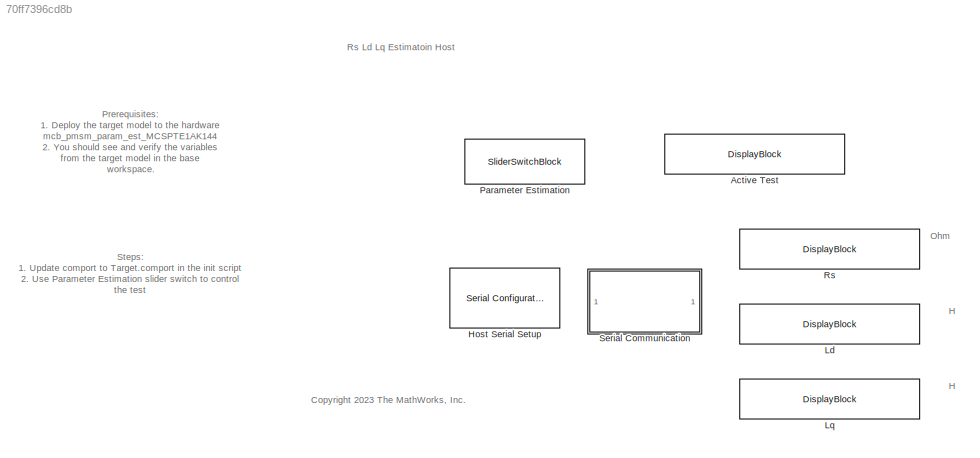
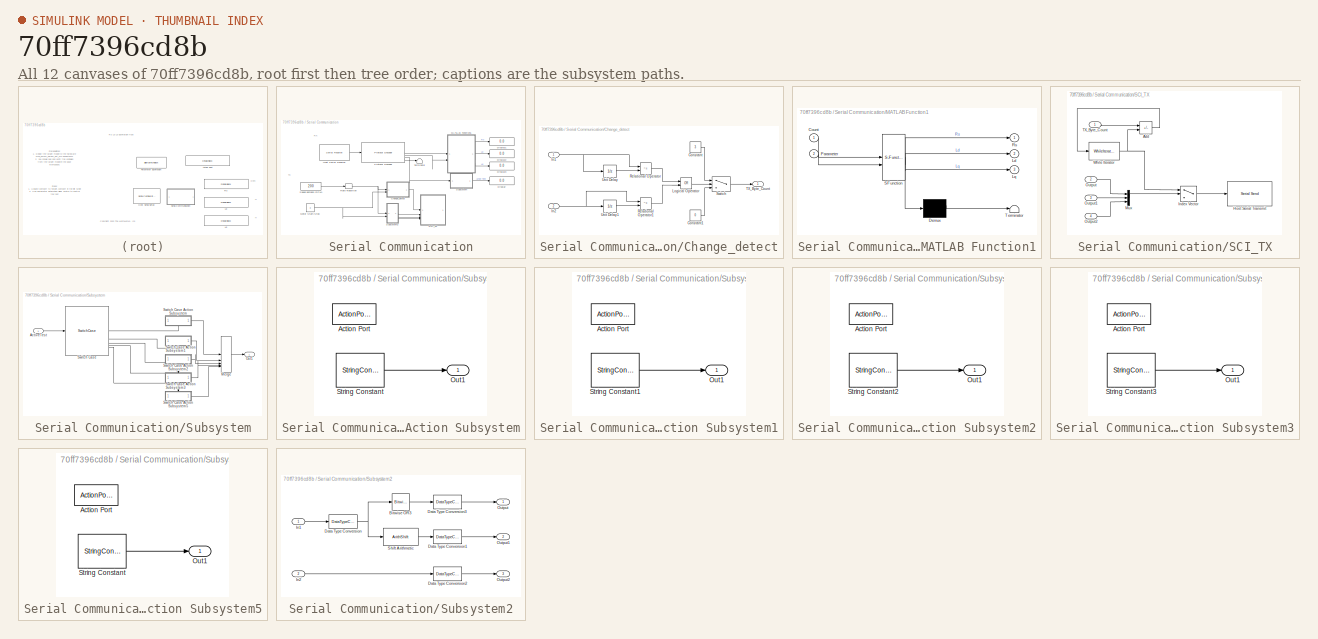
[diagram: thumbnail index - all 12 canvases of the model, root first then tree order]
MODEL slx_70ff7396cd8b
KIND model
CONFIG AbsTol = auto
CONFIG EnableMultiTasking = on
CONFIG FixedStep = auto
CONFIG MaxStep = auto
CONFIG MinStep = auto
CONFIG RelTol = 1e-3
CONFIG SampleTimeConstraint = Unconstrained
CONFIG SolverName = FixedStepDiscrete
CONFIG StartTime = 0.0
CONFIG StopTime = inf
BLOCK [DisplayBlock] Active Test
  LabelPosition = Hide
  Transparency = 1
BLOCK [Reference] Host Serial Setup  REF=instrumentseriallib/Serial Configuration
  LibrarySourceBlock = mcbhostblockslib/Host Serial Setup
  Priority = -99
  SourceBlock = instrumentseriallib/Serial Configuration
  SourceType = system.SerialConfiguration
BLOCK [DisplayBlock] Ld
  LabelPosition = Hide
  Transparency = 1
BLOCK [DisplayBlock] Lq
  LabelPosition = Hide
  Transparency = 1
BLOCK [SliderSwitchBlock] Parameter Estimation
  LabelPosition = Hide
BLOCK [DisplayBlock] Rs
  LabelPosition = Hide
  Transparency = 1
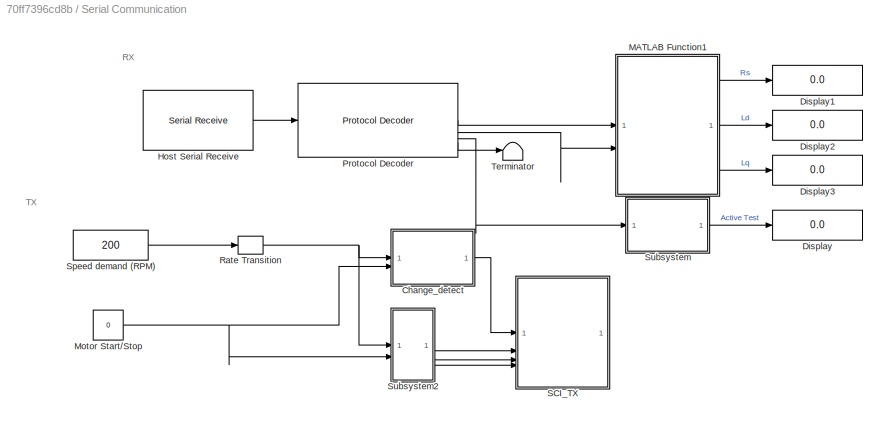
BLOCK [SubSystem] Serial Communication
BLOCK [SubSystem] Serial Communication/Change_detect
BLOCK [Constant] Serial Communication/Change_detect/Constant
  OutDataTypeStr = uint8
  Value = 3
BLOCK [Constant] Serial Communication/Change_detect/Constant1
  OutDataTypeStr = uint8
  Value = 0
BLOCK [Inport] Serial Communication/Change_detect/In1
BLOCK [Inport] Serial Communication/Change_detect/In2
  Port = 2
BLOCK [Logic] Serial Communication/Change_detect/Logical Operator
  AllPortsSameDT = off
  Operator = OR
  OutDataTypeStr = boolean
BLOCK [RelationalOperator] Serial Communication/Change_detect/Relational Operator
  InputSameDT = off
  Operator = ~=
  OutDataTypeStr = boolean
BLOCK [RelationalOperator] Serial Communication/Change_detect/Relational Operator1
  InputSameDT = off
  Operator = ~=
  OutDataTypeStr = boolean
BLOCK [Switch] Serial Communication/Change_detect/Switch
  Criteria = u2 > Threshold
  InputSameDT = off
  SaturateOnIntegerOverflow = off
BLOCK [Outport] Serial Communication/Change_detect/TX_Byte_Count
  VectorParamsAs1DForOutWhenUnconnected = off
BLOCK [UnitDelay] Serial Communication/Change_detect/Unit Delay
  HasFrameUpgradeWarning = on
  InitialCondition = 0.5
  SampleTime = -1
BLOCK [UnitDelay] Serial Communication/Change_detect/Unit Delay1
  HasFrameUpgradeWarning = on
  SampleTime = -1
BLOCK [Display] Serial Communication/Display
  Decimation = 1
BLOCK [Display] Serial Communication/Display1
  Decimation = 1
BLOCK [Display] Serial Communication/Display2
  Decimation = 1
BLOCK [Display] Serial Communication/Display3
  Decimation = 1
BLOCK [Reference] Serial Communication/Host Serial Receive  REF=instrumentseriallib/Serial Receive
  LibrarySourceBlock = mcbhostblockslib/Host Serial Receive
  SourceBlock = instrumentseriallib/Serial Receive
  SourceType = system.SerialReceive
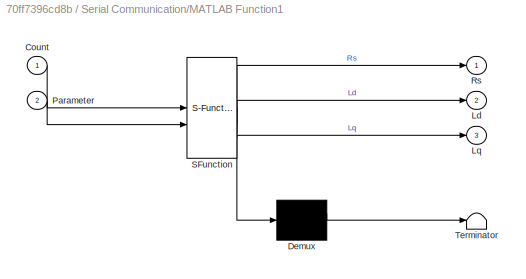
BLOCK [SubSystem] Serial Communication/MATLAB Function1
  ErrorFcn = Stateflow.Translate.translate
  PermitHierarchicalResolution = ExplicitOnly
  SFBlockType = MATLAB Function
  TreatAsAtomicUnit = on
BLOCK [Demux] Serial Communication/MATLAB Function1/ Demux 
  Outputs = 1
BLOCK [S-Function] Serial Communication/MATLAB Function1/ SFunction 
  EnableBusSupport = on
  FunctionName = sf_sfun
  PortCounts = [2 4]
  SFcnIsStateOwnerBlock = off
  SFunctionDeploymentMode = off
  Tag = Stateflow S-Function 2
BLOCK [Terminator] Serial Communication/MATLAB Function1/ Terminator 
BLOCK [Inport] Serial Communication/MATLAB Function1/Count
BLOCK [Outport] Serial Communication/MATLAB Function1/Ld
  Port = 2
BLOCK [Outport] Serial Communication/MATLAB Function1/Lq
  Port = 3
BLOCK [Inport] Serial Communication/MATLAB Function1/Parameter
  Port = 2
BLOCK [Outport] Serial Communication/MATLAB Function1/Rs
BLOCK [Constant] Serial Communication/Motor Start//Stop
  OutDataTypeStr = Inherit: Inherit via back propagation
  Value = 0
BLOCK [Reference] Serial Communication/Protocol Decoder  REF=embeddedblockslib/Protocol Decoder
  LibrarySourceBlock = c2000lib/Target Communication/Protocol Decoder
  SourceBlock = embeddedblockslib/Protocol Decoder
  SourceType = matlabshared.embedded_utilities.blocks.ProtocolDecoderBlock
BLOCK [RateTransition] Serial Communication/Rate Transition
  OutPortSampleTime = Ts_uart
BLOCK [SubSystem] Serial Communication/SCI_TX
  TreatAsAtomicUnit = on
BLOCK [Sum] Serial Communication/SCI_TX/Add
  IconShape = rectangular
  Inputs = +-
  OutDataTypeStr = Inherit: Same as first input
BLOCK [Reference] Serial Communication/SCI_TX/Host Serial Transmit  REF=instrumentseriallib/Serial Send
  LibrarySourceBlock = mcbhostblockslib/Host Serial Transmit
  SourceBlock = instrumentseriallib/Serial Send
  SourceType = system.SerialSend
BLOCK [MultiPortSwitch] Serial Communication/SCI_TX/Index Vector
  InputSameDT = off
  Inputs = 1
  SaturateOnIntegerOverflow = off
BLOCK [Mux] Serial Communication/SCI_TX/Mux
  DisplayOption = bar
  Inputs = 3
BLOCK [Inport] Serial Communication/SCI_TX/Output
  Port = 2
BLOCK [Inport] Serial Communication/SCI_TX/Output1
  Port = 3
BLOCK [Inport] Serial Communication/SCI_TX/Output2
  Port = 4
BLOCK [Inport] Serial Communication/SCI_TX/TX_Byte_Count
BLOCK [WhileIterator] Serial Communication/SCI_TX/While Iterator
  MaxIters = 3
  OutputDataType = int16
  ShowIterationPort = on
  WhileBlockType = do-while
BLOCK [Constant] Serial Communication/Speed demand (RPM)
  OutDataTypeStr = int16
  SampleTime = 0.03
  Value = 200
  VectorParams1D = off
BLOCK [SubSystem] Serial Communication/Subsystem
BLOCK [Inport] Serial Communication/Subsystem/ActiveTest
BLOCK [Merge] Serial Communication/Subsystem/Merge
  Inputs = 5
BLOCK [Outport] Serial Communication/Subsystem/Out1
BLOCK [SwitchCase] Serial Communication/Subsystem/Switch Case
  CaseConditions = {0,1,2,3}
BLOCK [SubSystem] Serial Communication/Subsystem/Switch Case Action Subsystem
  TreatAsAtomicUnit = on
BLOCK [ActionPort] Serial Communication/Subsystem/Switch Case Action Subsystem/Action Port
BLOCK [Outport] Serial Communication/Subsystem/Switch Case Action Subsystem/Out1
BLOCK [StringConstant] Serial Communication/Subsystem/Switch Case Action Subsystem/String Constant
  String = "Inactive"
BLOCK [SubSystem] Serial Communication/Subsystem/Switch Case Action Subsystem1
  TreatAsAtomicUnit = on
BLOCK [ActionPort] Serial Communication/Subsystem/Switch Case Action Subsystem1/Action Port
BLOCK [Outport] Serial Communication/Subsystem/Switch Case Action Subsystem1/Out1
BLOCK [StringConstant] Serial Communication/Subsystem/Switch Case Action Subsystem1/String Constant1
  String = "Rs Test"
BLOCK [SubSystem] Serial Communication/Subsystem/Switch Case Action Subsystem2
  TreatAsAtomicUnit = on
BLOCK [ActionPort] Serial Communication/Subsystem/Switch Case Action Subsystem2/Action Port
BLOCK [Outport] Serial Communication/Subsystem/Switch Case Action Subsystem2/Out1
BLOCK [StringConstant] Serial Communication/Subsystem/Switch Case Action Subsystem2/String Constant2
  String = "Ld Test"
BLOCK [SubSystem] Serial Communication/Subsystem/Switch Case Action Subsystem3
  TreatAsAtomicUnit = on
BLOCK [ActionPort] Serial Communication/Subsystem/Switch Case Action Subsystem3/Action Port
BLOCK [Outport] Serial Communication/Subsystem/Switch Case Action Subsystem3/Out1
BLOCK [StringConstant] Serial Communication/Subsystem/Switch Case Action Subsystem3/String Constant3
  String = "Lq Test"
BLOCK [SubSystem] Serial Communication/Subsystem/Switch Case Action Subsystem5
  TreatAsAtomicUnit = on
BLOCK [ActionPort] Serial Communication/Subsystem/Switch Case Action Subsystem5/Action Port
BLOCK [Outport] Serial Communication/Subsystem/Switch Case Action Subsystem5/Out1
BLOCK [StringConstant] Serial Communication/Subsystem/Switch Case Action Subsystem5/String Constant
  String = "Inactive"
BLOCK [SubSystem] Serial Communication/Subsystem2
BLOCK [Reference] Serial Communication/Subsystem2/Bitwise OR3  REF=simulink/Logic and Bit
Operations/Bitwise
Operator
  SourceBlock = simulink/Logic and Bit\nOperations/Bitwise\nOperator
  SourceType = Bitwise Operator
BLOCK [DataTypeConversion] Serial Communication/Subsystem2/Data Type Conversion
  ConvertRealWorld = Stored Integer (SI)
  OutDataTypeStr = uint16
  RndMeth = Simplest
  SaturateOnIntegerOverflow = off
BLOCK [DataTypeConversion] Serial Communication/Subsystem2/Data Type Conversion1
  ConvertRealWorld = Stored Integer (SI)
  OutDataTypeStr = uint8
  RndMeth = Simplest
  SaturateOnIntegerOverflow = off
BLOCK [DataTypeConversion] Serial Communication/Subsystem2/Data Type Conversion2
  ConvertRealWorld = Stored Integer (SI)
  OutDataTypeStr = uint8
  RndMeth = Simplest
  SaturateOnIntegerOverflow = off
BLOCK [DataTypeConversion] Serial Communication/Subsystem2/Data Type Conversion3
  ConvertRealWorld = Stored Integer (SI)
  OutDataTypeStr = uint8
  RndMeth = Simplest
  SaturateOnIntegerOverflow = off
BLOCK [Inport] Serial Communication/Subsystem2/In1
BLOCK [Inport] Serial Communication/Subsystem2/In2
  Port = 2
BLOCK [Outport] Serial Communication/Subsystem2/Output
BLOCK [Outport] Serial Communication/Subsystem2/Output1
  Port = 2
BLOCK [Outport] Serial Communication/Subsystem2/Output2
  Port = 3
BLOCK [ArithShift] Serial Communication/Subsystem2/Shift Arithmetic
  BitShiftDirection = Right
  BitShiftNumber = 8
  InputPortMap = u0
BLOCK [Terminator] Serial Communication/Terminator
ANNOTATION (root): H
ANNOTATION (root): Ohm
ANNOTATION (root): Prerequisites: 1. Deploy the target model to the hardware mcb_pmsm_param_est_MCSPTE1AK144 2. You should see and verify the variables from the target model in the base workspace.
ANNOTATION (root): Steps: 1. Update comport to Target.comport in the init script 2. Use Parameter Estimation slider switch to control the test
ANNOTATION (root): Rs Ld Lq Estimatoin Host
ANNOTATION (root): <copyright redacted>
ANNOTATION Serial Communication: RX
ANNOTATION Serial Communication: TX
LINE Serial Communication/Change_detect/Constant1:1 -> Serial Communication/Change_detect/Switch:3
LINE Serial Communication/Change_detect/Constant:1 -> Serial Communication/Change_detect/Switch:1
NET Serial Communication/Change_detect/In1:1 -> Serial Communication/Change_detect/Relational Operator:1, Serial Communication/Change_detect/Unit Delay:1
NET Serial Communication/Change_detect/In2:1 -> Serial Communication/Change_detect/Relational Operator1:1, Serial Communication/Change_detect/Unit Delay1:1
LINE Serial Communication/Change_detect/Logical Operator:1 -> Serial Communication/Change_detect/Switch:2
LINE Serial Communication/Change_detect/Relational Operator1:1 -> Serial Communication/Change_detect/Logical Operator:2
LINE Serial Communication/Change_detect/Relational Operator:1 -> Serial Communication/Change_detect/Logical Operator:1
LINE Serial Communication/Change_detect/Switch:1 -> Serial Communication/Change_detect/TX_Byte_Count:1
LINE Serial Communication/Change_detect/Unit Delay1:1 -> Serial Communication/Change_detect/Relational Operator1:2
LINE Serial Communication/Change_detect/Unit Delay:1 -> Serial Communication/Change_detect/Relational Operator:2
LINE Serial Communication/Change_detect:1 -> Serial Communication/SCI_TX:1
LINE Serial Communication/Host Serial Receive:1 -> Serial Communication/Protocol Decoder:1
LINE Serial Communication/MATLAB Function1:1 -> Serial Communication/Display1:1
LINE Serial Communication/MATLAB Function1:2 -> Serial Communication/Display2:1
LINE Serial Communication/MATLAB Function1:3 -> Serial Communication/Display3:1
NET Serial Communication/Motor Start//Stop:1 -> Serial Communication/Change_detect:2, Serial Communication/Subsystem2:2
LINE Serial Communication/Protocol Decoder:1 -> Serial Communication/MATLAB Function1:1
LINE Serial Communication/Protocol Decoder:2 -> Serial Communication/MATLAB Function1:2
LINE Serial Communication/Protocol Decoder:3 -> Serial Communication/Subsystem:1
LINE Serial Communication/Protocol Decoder:4 -> Serial Communication/Terminator:1
NET Serial Communication/Rate Transition:1 -> Serial Communication/Change_detect:1, Serial Communication/Subsystem2:1
LINE Serial Communication/SCI_TX/Add:1 -> Serial Communication/SCI_TX/While Iterator:1
LINE Serial Communication/SCI_TX/Index Vector:1 -> Serial Communication/SCI_TX/Host Serial Transmit:1
LINE Serial Communication/SCI_TX/Mux:1 -> Serial Communication/SCI_TX/Index Vector:2
LINE Serial Communication/SCI_TX/Output1:1 -> Serial Communication/SCI_TX/Mux:2
LINE Serial Communication/SCI_TX/Output2:1 -> Serial Communication/SCI_TX/Mux:3
LINE Serial Communication/SCI_TX/Output:1 -> Serial Communication/SCI_TX/Mux:1
LINE Serial Communication/SCI_TX/TX_Byte_Count:1 -> Serial Communication/SCI_TX/Add:1
NET Serial Communication/SCI_TX/While Iterator:1 -> Serial Communication/SCI_TX/Add:2, Serial Communication/SCI_TX/Index Vector:1
LINE Serial Communication/Speed demand (RPM):1 -> Serial Communication/Rate Transition:1
LINE Serial Communication/Subsystem/ActiveTest:1 -> Serial Communication/Subsystem/Switch Case:1
LINE Serial Communication/Subsystem/Merge:1 -> Serial Communication/Subsystem/Out1:1
LINE Serial Communication/Subsystem/Switch Case Action Subsystem/String Constant:1 -> Serial Communication/Subsystem/Switch Case Action Subsystem/Out1:1
LINE Serial Communication/Subsystem/Switch Case Action Subsystem1/String Constant1:1 -> Serial Communication/Subsystem/Switch Case Action Subsystem1/Out1:1
LINE Serial Communication/Subsystem/Switch Case Action Subsystem1:1 -> Serial Communication/Subsystem/Merge:2
LINE Serial Communication/Subsystem/Switch Case Action Subsystem2/String Constant2:1 -> Serial Communication/Subsystem/Switch Case Action Subsystem2/Out1:1
LINE Serial Communication/Subsystem/Switch Case Action Subsystem2:1 -> Serial Communication/Subsystem/Merge:3
LINE Serial Communication/Subsystem/Switch Case Action Subsystem3/String Constant3:1 -> Serial Communication/Subsystem/Switch Case Action Subsystem3/Out1:1
LINE Serial Communication/Subsystem/Switch Case Action Subsystem3:1 -> Serial Communication/Subsystem/Merge:4
LINE Serial Communication/Subsystem/Switch Case Action Subsystem5/String Constant:1 -> Serial Communication/Subsystem/Switch Case Action Subsystem5/Out1:1
LINE Serial Communication/Subsystem/Switch Case Action Subsystem5:1 -> Serial Communication/Subsystem/Merge:5
LINE Serial Communication/Subsystem/Switch Case Action Subsystem:1 -> Serial Communication/Subsystem/Merge:1
LINE Serial Communication/Subsystem/Switch Case:1 -> Serial Communication/Subsystem/Switch Case Action Subsystem:ifaction
LINE Serial Communication/Subsystem/Switch Case:2 -> Serial Communication/Subsystem/Switch Case Action Subsystem1:ifaction
LINE Serial Communication/Subsystem/Switch Case:3 -> Serial Communication/Subsystem/Switch Case Action Subsystem2:ifaction
LINE Serial Communication/Subsystem/Switch Case:4 -> Serial Communication/Subsystem/Switch Case Action Subsystem3:ifaction
LINE Serial Communication/Subsystem/Switch Case:5 -> Serial Communication/Subsystem/Switch Case Action Subsystem5:ifaction
LINE Serial Communication/Subsystem2/Bitwise OR3:1 -> Serial Communication/Subsystem2/Data Type Conversion3:1
LINE Serial Communication/Subsystem2/Data Type Conversion1:1 -> Serial Communication/Subsystem2/Output1:1
LINE Serial Communication/Subsystem2/Data Type Conversion2:1 -> Serial Communication/Subsystem2/Output2:1
LINE Serial Communication/Subsystem2/Data Type Conversion3:1 -> Serial Communication/Subsystem2/Output:1
NET Serial Communication/Subsystem2/Data Type Conversion:1 -> Serial Communication/Subsystem2/Bitwise OR3:1, Serial Communication/Subsystem2/Shift Arithmetic:1
LINE Serial Communication/Subsystem2/In1:1 -> Serial Communication/Subsystem2/Data Type Conversion:1
LINE Serial Communication/Subsystem2/In2:1 -> Serial Communication/Subsystem2/Data Type Conversion2:1
LINE Serial Communication/Subsystem2/Shift Arithmetic:1 -> Serial Communication/Subsystem2/Data Type Conversion1:1
LINE Serial Communication/Subsystem2:1 -> Serial Communication/SCI_TX:2
LINE Serial Communication/Subsystem2:2 -> Serial Communication/SCI_TX:3
LINE Serial Communication/Subsystem2:3 -> Serial Communication/SCI_TX:4
LINE Serial Communication/Subsystem:1 -> Serial Communication/Display:1
note: NET lines group one-source signal fan-out (src -> all destinations, sorted); 1:1 wires keep LINE
CHART Serial Communication/MATLAB Function1 states=1 transitions=1
  STATE_LABEL 'eML_blk_kernel()'
  STATE_LABEL "SCRIPT:\nfunction [ Rs, Ld, Lq] = unBuf(Count, Parameter)\n\ncoder.extrinsic('message', 'msgbox', 'set_param', 'error');\n\npersistent RsLocal;             % To count the number of Id samples\nif isempty(RsLocal)\n\tRsLocal = single(0);\nend\n\npersistent LdLocal;             % To count the number of Id samples\nif isempty(LdLocal)\n\tLdLocal = single(0);\nend\n\npersistent LqLocal;             % To count the numb...<+249ch>"
CHART  states=0 transitions=0
